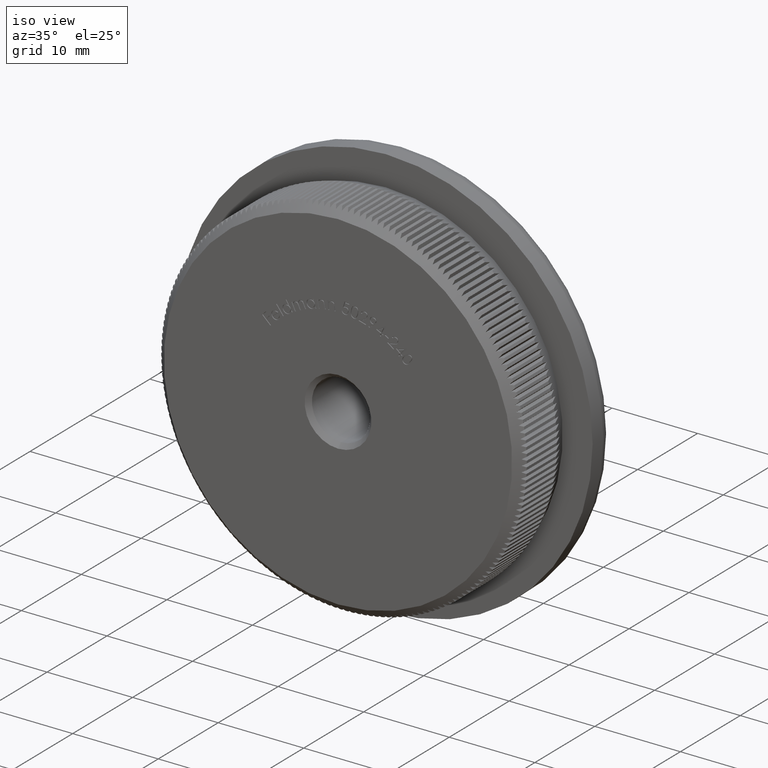
[diagram: clean part render]
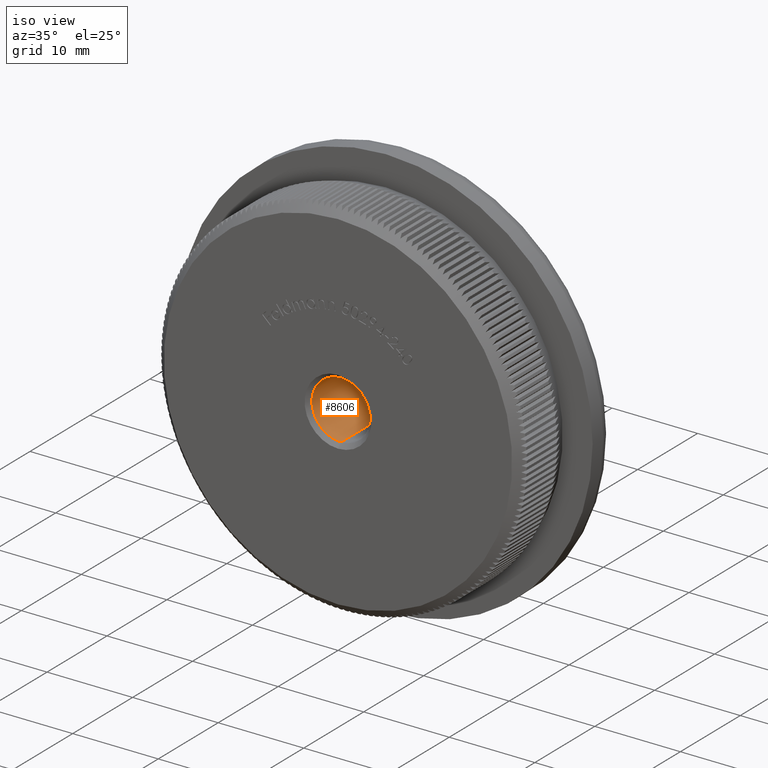
[diagram: same view with one face highlighted and labeled with its STEP entity id]
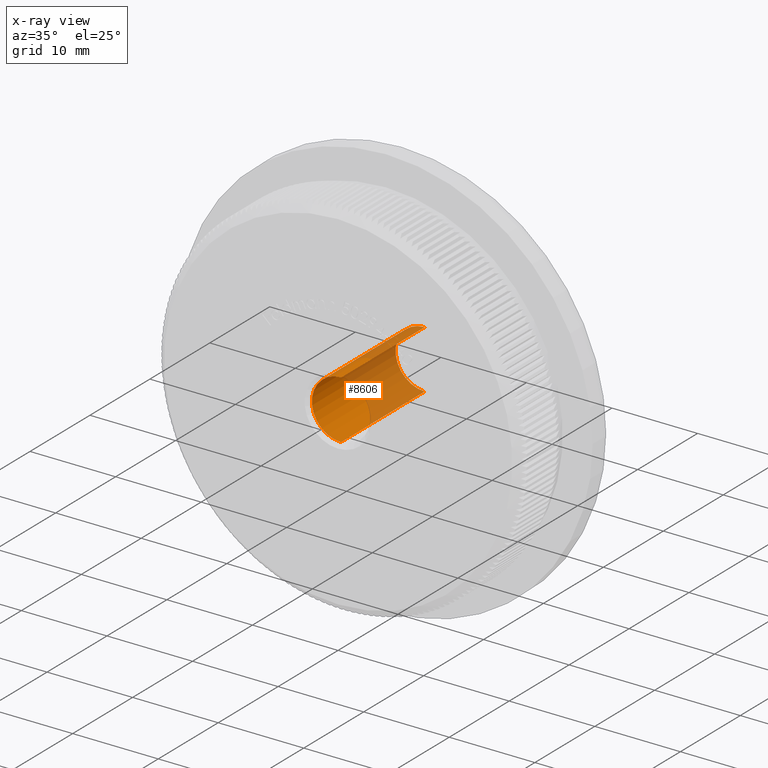
[diagram: x-ray of the same camera — body ghosted, the highlighted face saturated]
A machine part, iso view. The second image highlights one B-rep face of the part: STEP entity #8606.
The next image is the same camera in x-ray: the body ghosted, the highlighted face saturated — about 52% of this face is hidden behind the body in this view.
In plain terms, the highlighted cylindrical surface (edge-blend (fillet) strip) has radius 3.4 mm, axis along (-0, -1, -0).
Its self-contained STEP definition (entity closure, byte-faithful):
#4146 = DIRECTION ( 'NONE',  ( 0.0000000000000000000, 0.0000000000000000000, 1.000000000000000000 ) ) ;
#4364 = DIRECTION ( 'NONE',  ( 0.0000000000000000000, 1.000000000000000000, 0.0000000000000000000 ) ) ;
#7158 = LINE ( 'NONE', #20345, #20646 ) ;
#7213 = DIRECTION ( 'NONE',  ( 0.0000000000000000000, 0.0000000000000000000, -1.000000000000000000 ) ) ;
#7840 = AXIS2_PLACEMENT_3D ( 'NONE', #26927, #4364, #4146 ) ;
#7971 = AXIS2_PLACEMENT_3D ( 'NONE', #14629, #25178, #7213 ) ;
#8178 = ORIENTED_EDGE ( 'NONE', *, *, #15656, .T. ) ;
#8237 = EDGE_CURVE ( 'NONE', #22160, #29685, #7158, .T. ) ;
#8283 = EDGE_CURVE ( 'NONE', #8985, #26122, #19852, .T. ) ;
#8286 = CARTESIAN_POINT ( 'NONE',  ( 4.163799117100995600E-016, 0.4999999999999891800, 3.399999999999995500 ) ) ;
#8606 = ADVANCED_FACE ( 'NONE', ( #9112 ), #31320, .F. ) ;
#8712 = ORIENTED_EDGE ( 'NONE', *, *, #8237, .T. ) ;
#8985 = VERTEX_POINT ( 'NONE', #26875 ) ;
#9112 = FACE_OUTER_BOUND ( 'NONE', #27370, .T. ) ;
#10985 = CIRCLE ( 'NONE', #7840, 3.399999999999995500 ) ;
#12301 = AXIS2_PLACEMENT_3D ( 'NONE', #30462, #15198, #20410 ) ;
#13223 = ORIENTED_EDGE ( 'NONE', *, *, #8283, .F. ) ;
#14629 = CARTESIAN_POINT ( 'NONE',  ( 0.0000000000000000000, 0.0000000000000000000, 0.0000000000000000000 ) ) ;
#15198 = DIRECTION ( 'NONE',  ( 0.0000000000000000000, -1.000000000000000000, 0.0000000000000000000 ) ) ;
#15656 = EDGE_CURVE ( 'NONE', #29685, #26122, #21518, .T. ) ;
#17567 = CARTESIAN_POINT ( 'NONE',  ( 0.0000000000000000000, 0.0000000000000000000, -3.399999999999995500 ) ) ;
#19852 = LINE ( 'NONE', #17567, #23819 ) ;
#20345 = CARTESIAN_POINT ( 'NONE',  ( 4.163799117100995600E-016, 0.0000000000000000000, 3.399999999999995500 ) ) ;
#20410 = DIRECTION ( 'NONE',  ( 0.0000000000000000000, 0.0000000000000000000, -1.000000000000000000 ) ) ;
#20601 = CARTESIAN_POINT ( 'NONE',  ( 4.163799117100995600E-016, 14.45906987097148100, 3.399999999999995500 ) ) ;
#20646 = VECTOR ( 'NONE', #25443, 1000.000000000000000 ) ;
#21518 = CIRCLE ( 'NONE', #12301, 3.399999999999995500 ) ;
#22160 = VERTEX_POINT ( 'NONE', #20601 ) ;
#22433 = ORIENTED_EDGE ( 'NONE', *, *, #22812, .T. ) ;
#22654 = DIRECTION ( 'NONE',  ( -0.0000000000000000000, -1.000000000000000000, -0.0000000000000000000 ) ) ;
#22812 = EDGE_CURVE ( 'NONE', #8985, #22160, #10985, .T. ) ;
#23819 = VECTOR ( 'NONE', #22654, 1000.000000000000000 ) ;
#25178 = DIRECTION ( 'NONE',  ( -0.0000000000000000000, -1.000000000000000000, -0.0000000000000000000 ) ) ;
#25443 = DIRECTION ( 'NONE',  ( -0.0000000000000000000, -1.000000000000000000, -0.0000000000000000000 ) ) ;
#26122 = VERTEX_POINT ( 'NONE', #27415 ) ;
#26875 = CARTESIAN_POINT ( 'NONE',  ( 0.0000000000000000000, 14.45906987097148100, -3.399999999999995500 ) ) ;
#26927 = CARTESIAN_POINT ( 'NONE',  ( 0.0000000000000000000, 14.45906987097148100, 0.0000000000000000000 ) ) ;
#27370 = EDGE_LOOP ( 'NONE', ( #22433, #8712, #8178, #13223 ) ) ;
#27415 = CARTESIAN_POINT ( 'NONE',  ( 0.0000000000000000000, 0.4999999999999891800, -3.399999999999995500 ) ) ;
#29685 = VERTEX_POINT ( 'NONE', #8286 ) ;
#30462 = CARTESIAN_POINT ( 'NONE',  ( 0.0000000000000000000, 0.4999999999999891800, 0.0000000000000000000 ) ) ;
#31320 = CYLINDRICAL_SURFACE ( 'NONE', #7971, 3.399999999999995500 ) ;